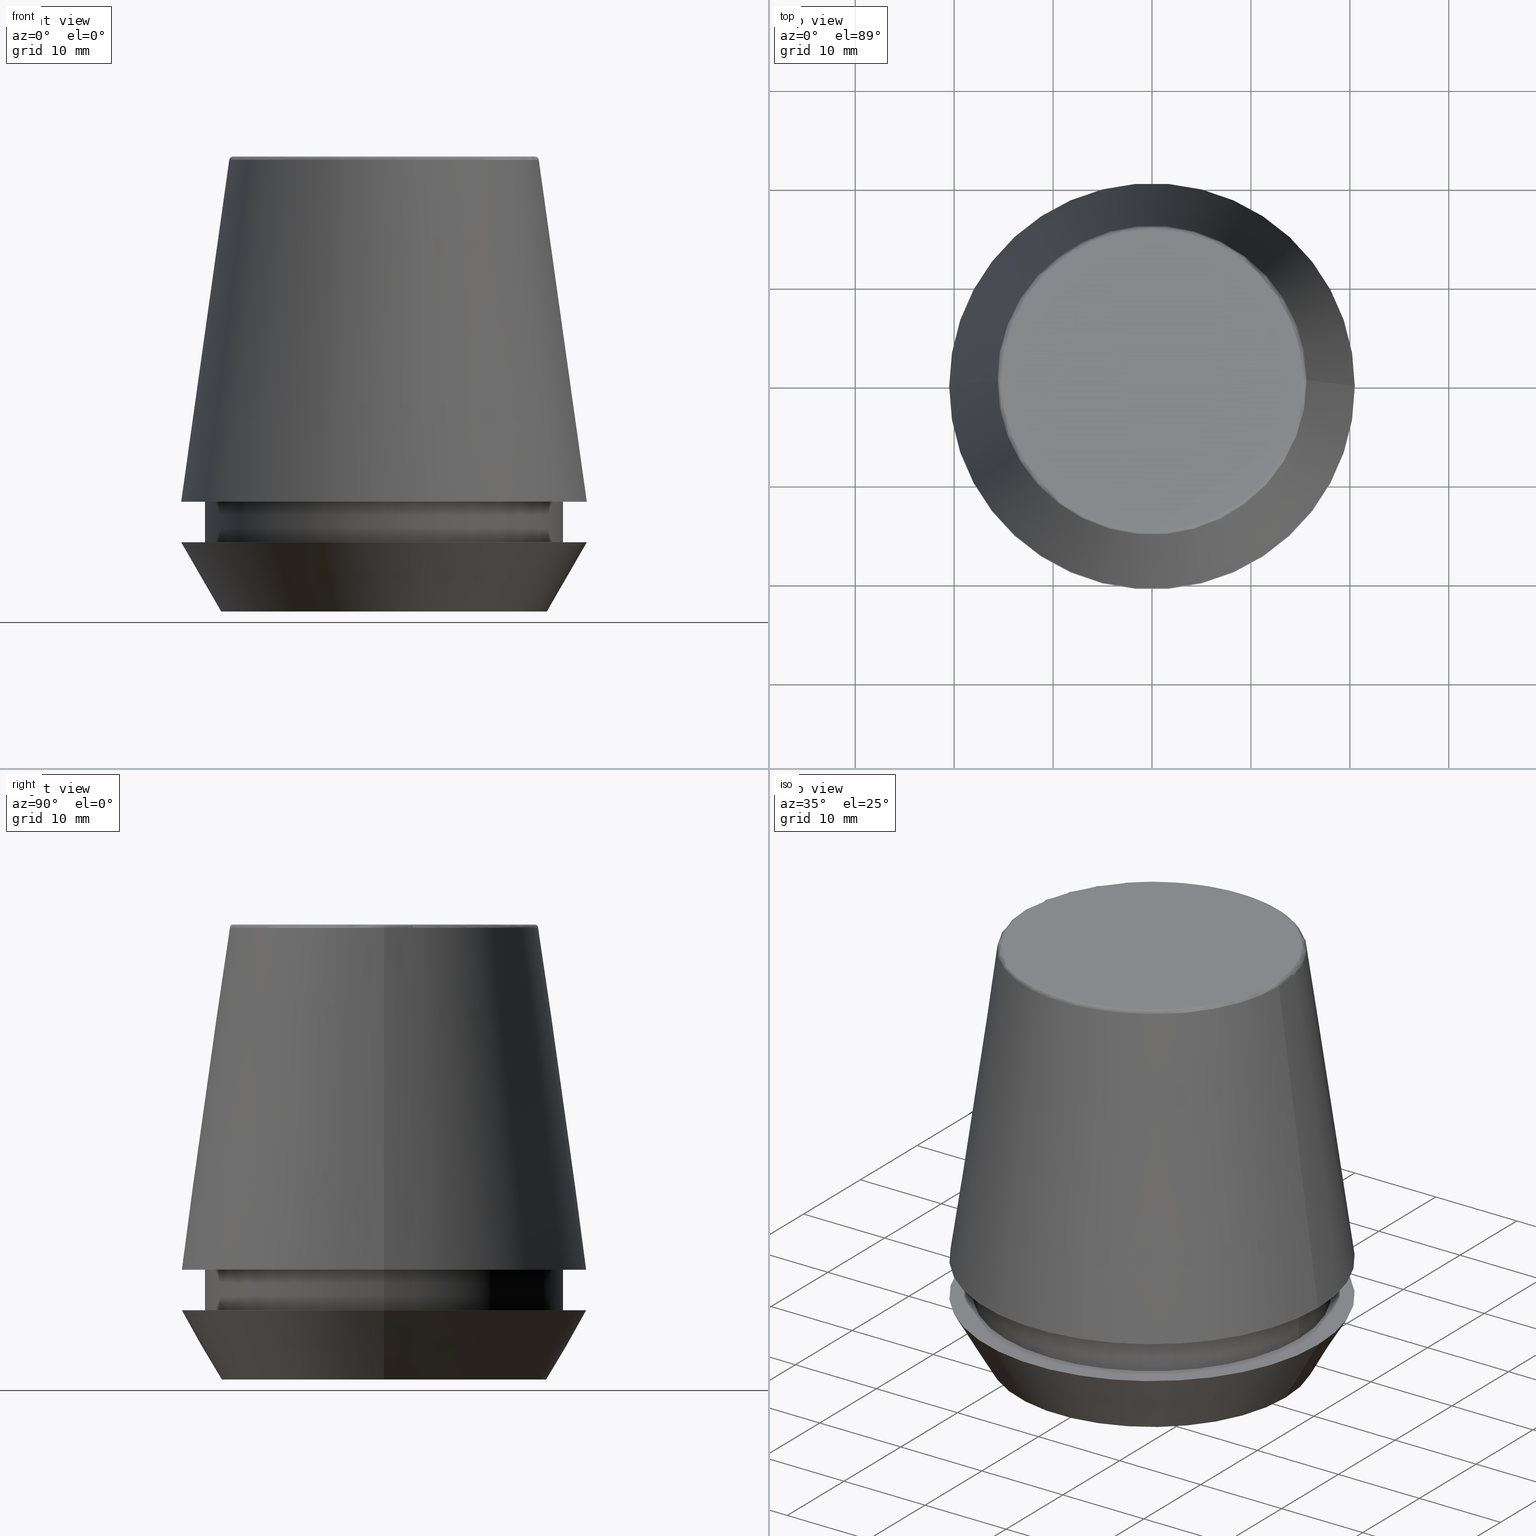
[diagram: canonical four-view strip — front | top / right | iso, engineering-drawing reading convention]
A machine part, canonical four-view strip (front | top / right | iso — engineering-drawing reading convention). The complete STEP part file that produces these views, byte-faithful:
ISO-10303-21;
HEADER;
FILE_DESCRIPTION (( 'STEP AP203' ),
    '1' );
FILE_NAME ('TAP COLLET ER 40G 18.0 X 14.5.STEP',
    '2019-04-10T04:15:22',
    ( '' ),
    ( '' ),
    'SwSTEP 2.0',
    'SolidWorks 2014',
    '' );
FILE_SCHEMA (( 'CONFIG_CONTROL_DESIGN' ));
ENDSEC;

DATA;
#1 = VECTOR ( 'NONE', #119, 1000.000000000000000 ) ;
#2 = CIRCLE ( 'NONE', #41, 16.45854811567268100 ) ;
#3 = APPROVAL_STATUS ( 'not_yet_approved' ) ;
#4 = AXIS2_PLACEMENT_3D ( 'NONE', #329, #192, #379 ) ;
#5 = CARTESIAN_POINT ( 'NONE',  ( 18.10000000000000500, 0.0000000000000000000, 11.09999999999999800 ) ) ;
#6 = ORIENTED_EDGE ( 'NONE', *, *, #377, .F. ) ;
#7 = FACE_OUTER_BOUND ( 'NONE', #174, .T. ) ;
#8 = VECTOR ( 'NONE', #197, 1000.000000000000000 ) ;
#9 = SHAPE_DEFINITION_REPRESENTATION ( #53, #152 ) ;
#10 = DIRECTION ( 'NONE',  ( -0.0000000000000000000, -0.0000000000000000000, 1.000000000000000000 ) ) ;
#11 = COORDINATED_UNIVERSAL_TIME_OFFSET ( 5, 30, .AHEAD. ) ;
#12 = AXIS2_PLACEMENT_3D ( 'NONE', #295, #73, #300 ) ;
#13 = DIRECTION ( 'NONE',  ( 1.000000000000000000, 0.0000000000000000000, 0.0000000000000000000 ) ) ;
#14 = DATE_TIME_ROLE ( 'creation_date' ) ;
#15 = SECURITY_CLASSIFICATION ( '', '', #334 ) ;
#16 = CIRCLE ( 'NONE', #120, 15.64384277279740400 ) ;
#17 = FACE_OUTER_BOUND ( 'NONE', #155, .T. ) ;
#18 = DIRECTION ( 'NONE',  ( 0.0000000000000000000, 0.0000000000000000000, 1.000000000000000000 ) ) ;
#19 = PERSON_AND_ORGANIZATION ( #158, #339 ) ;
#20 = AXIS2_PLACEMENT_3D ( 'NONE', #36, #51, #89 ) ;
#21 = DIRECTION ( 'NONE',  ( 1.000000000000000000, 0.0000000000000000000, 0.0000000000000000000 ) ) ;
#22 = ORIENTED_EDGE ( 'NONE', *, *, #167, .F. ) ;
#23 = CARTESIAN_POINT ( 'NONE',  ( 0.0000000000000000000, 0.0000000000000000000, 0.0000000000000000000 ) ) ;
#24 = DIRECTION ( 'NONE',  ( -0.0000000000000000000, -0.0000000000000000000, 1.000000000000000000 ) ) ;
#25 = CC_DESIGN_DATE_AND_TIME_ASSIGNMENT ( #277, #14, ( #355 ) ) ;
#26 = CARTESIAN_POINT ( 'NONE',  ( 0.0000000000000000000, 0.0000000000000000000, 7.000000000000006200 ) ) ;
#27 = DIRECTION ( 'NONE',  ( 1.000000000000000000, 0.0000000000000000000, 0.0000000000000000000 ) ) ;
#28 = DIRECTION ( 'NONE',  ( 1.000000000000000000, 0.0000000000000000000, 0.0000000000000000000 ) ) ;
#29 = ORIENTED_EDGE ( 'NONE', *, *, #306, .F. ) ;
#30 = ADVANCED_FACE ( 'NONE', ( #347 ), #113, .T. ) ;
#31 = DATE_AND_TIME ( #67, #271 ) ;
#32 = CARTESIAN_POINT ( 'NONE',  ( 0.0000000000000000000, 0.0000000000000000000, 11.09999999999999800 ) ) ;
#33 = TOROIDAL_SURFACE ( 'NONE', #181, 15.24773554530077600, 0.3999999999999991900 ) ;
#34 = ORIENTED_EDGE ( 'NONE', *, *, #167, .T. ) ;
#35 = PERSON_AND_ORGANIZATION ( #158, #339 ) ;
#36 = CARTESIAN_POINT ( 'NONE',  ( 0.0000000000000000000, 20.50032537154048700, 11.09999999999999800 ) ) ;
#37 = ORIENTED_EDGE ( 'NONE', *, *, #306, .T. ) ;
#38 = VERTEX_POINT ( 'NONE', #108 ) ;
#39 = AXIS2_PLACEMENT_3D ( 'NONE', #270, #362, #316 ) ;
#40 = DATE_AND_TIME ( #71, #387 ) ;
#41 = AXIS2_PLACEMENT_3D ( 'NONE', #248, #136, #195 ) ;
#42 = DIRECTION ( 'NONE',  ( 1.224646799147353200E-016, 1.000000000000000000, 0.0000000000000000000 ) ) ;
#43 = CC_DESIGN_APPROVAL ( #361, ( #355 ) ) ;
#44 = APPROVAL_PERSON_ORGANIZATION ( #224, #58, #244 ) ;
#45 = VECTOR ( 'NONE', #233, 1000.000000000000000 ) ;
#46 = PLANE ( 'NONE',  #20 ) ;
#47 = ORIENTED_EDGE ( 'NONE', *, *, #377, .T. ) ;
#48 = ORIENTED_EDGE ( 'NONE', *, *, #78, .F. ) ;
#49 = CARTESIAN_POINT ( 'NONE',  ( 0.0000000000000000000, 0.0000000000000000000, 46.00000000000000000 ) ) ;
#50 = VERTEX_POINT ( 'NONE', #314 ) ;
#51 = DIRECTION ( 'NONE',  ( 0.0000000000000000000, -0.0000000000000000000, 1.000000000000000000 ) ) ;
#52 = AXIS2_PLACEMENT_3D ( 'NONE', #182, #214, #13 ) ;
#54 = EDGE_LOOP ( 'NONE', ( #6, #320, #179, #102 ) ) ;
#53 = PRODUCT_DEFINITION_SHAPE ( 'NONE', 'NONE',  #355 ) ;
#55 = DIRECTION ( 'NONE',  ( 1.000000000000000000, 0.0000000000000000000, 0.0000000000000000000 ) ) ;
#56 = VERTEX_POINT ( 'NONE', #333 ) ;
#57 = ORIENTED_EDGE ( 'NONE', *, *, #156, .F. ) ;
#58 = APPROVAL ( #209, 'UNSPECIFIED' ) ;
#59 = ORIENTED_EDGE ( 'NONE', *, *, #190, .F. ) ;
#60 = COORDINATED_UNIVERSAL_TIME_OFFSET ( 5, 30, .AHEAD. ) ;
#61 = CARTESIAN_POINT ( 'NONE',  ( 0.0000000000000000000, 0.0000000000000000000, 11.09999999999999800 ) ) ;
#62 = EDGE_LOOP ( 'NONE', ( #48, #68, #66, #238 ) ) ;
#63 = ORIENTED_EDGE ( 'NONE', *, *, #135, .T. ) ;
#64 = CARTESIAN_POINT ( 'NONE',  ( -16.45854811567268100, 2.263058382549599700E-015, 0.0000000000000000000 ) ) ;
#65 = AXIS2_PLACEMENT_3D ( 'NONE', #112, #122, #176 ) ;
#66 = ORIENTED_EDGE ( 'NONE', *, *, #315, .T. ) ;
#67 = CALENDAR_DATE ( 2019, 10, 4 ) ;
#68 = ORIENTED_EDGE ( 'NONE', *, *, #190, .T. ) ;
#69 = EDGE_LOOP ( 'NONE', ( #116, #59 ) ) ;
#70 = AXIS2_PLACEMENT_3D ( 'NONE', #375, #302, #21 ) ;
#71 = CALENDAR_DATE ( 2019, 10, 4 ) ;
#72 = ORIENTED_EDGE ( 'NONE', *, *, #125, .T. ) ;
#73 = DIRECTION ( 'NONE',  ( 0.0000000000000000000, 0.0000000000000000000, -1.000000000000000000 ) ) ;
#74 = VERTEX_POINT ( 'NONE', #310 ) ;
#75 = EDGE_LOOP ( 'NONE', ( #249, #364, #37, #91 ) ) ;
#76 = APPROVAL_PERSON_ORGANIZATION ( #357, #199, #239 ) ;
#77 = ORIENTED_EDGE ( 'NONE', *, *, #164, .F. ) ;
#78 = EDGE_CURVE ( 'NONE', #336, #38, #194, .T. ) ;
#79 = EDGE_LOOP ( 'NONE', ( #296, #34, #72, #57 ) ) ;
#80 = ORIENTED_EDGE ( 'NONE', *, *, #175, .F. ) ;
#81 = COORDINATED_UNIVERSAL_TIME_OFFSET ( 5, 30, .AHEAD. ) ;
#82 = CARTESIAN_POINT ( 'NONE',  ( -18.10000000000000500, 2.216610706456710000E-015, 46.00000000000000000 ) ) ;
#83 = ORIENTED_EDGE ( 'NONE', *, *, #253, .T. ) ;
#84 = APPLICATION_CONTEXT ( 'configuration controlled 3d designs of mechanical parts and assemblies' ) ;
#85 = ORIENTED_EDGE ( 'NONE', *, *, #164, .T. ) ;
#86 = AXIS2_PLACEMENT_3D ( 'NONE', #196, #290, #101 ) ;
#87 = DIRECTION ( 'NONE',  ( -0.0000000000000000000, -0.0000000000000000000, 1.000000000000000000 ) ) ;
#88 = ORIENTED_EDGE ( 'NONE', *, *, #221, .F. ) ;
#89 = DIRECTION ( 'NONE',  ( 1.000000000000000000, 0.0000000000000000000, 0.0000000000000000000 ) ) ;
#90 = EDGE_LOOP ( 'NONE', ( #83, #63 ) ) ;
#91 = ORIENTED_EDGE ( 'NONE', *, *, #145, .T. ) ;
#92 = ORIENTED_EDGE ( 'NONE', *, *, #175, .T. ) ;
#93 = CARTESIAN_POINT ( 'NONE',  ( 0.0000000000000000000, 0.0000000000000000000, 0.0000000000000000000 ) ) ;
#94 = VERTEX_POINT ( 'NONE', #173 ) ;
#95 = DIRECTION ( 'NONE',  ( 1.000000000000000000, 0.0000000000000000000, 0.0000000000000000000 ) ) ;
#96 = AXIS2_PLACEMENT_3D ( 'NONE', #359, #230, #27 ) ;
#97 = EDGE_LOOP ( 'NONE', ( #85, #110 ) ) ;
#98 = EDGE_CURVE ( 'NONE', #160, #269, #16, .T. ) ;
#99 = EDGE_LOOP ( 'NONE', ( #107, #213, #88, #326 ) ) ;
#100 = FACE_OUTER_BOUND ( 'NONE', #90, .T. ) ;
#101 = DIRECTION ( 'NONE',  ( 1.000000000000000000, 0.0000000000000000000, 0.0000000000000000000 ) ) ;
#102 = ORIENTED_EDGE ( 'NONE', *, *, #135, .F. ) ;
#103 = LINE ( 'NONE', #373, #292 ) ;
#104 = CARTESIAN_POINT ( 'NONE',  ( -15.64384277279740400, 0.0000000000000000000, 45.65566924038402900 ) ) ;
#105 = DIRECTION ( 'NONE',  ( 1.000000000000000000, 0.0000000000000000000, 0.0000000000000000000 ) ) ;
#106 = COORDINATED_UNIVERSAL_TIME_OFFSET ( 5, 30, .AHEAD. ) ;
#107 = ORIENTED_EDGE ( 'NONE', *, *, #346, .T. ) ;
#108 = CARTESIAN_POINT ( 'NONE',  ( -20.50000000000000000, 2.510525938252074100E-015, 7.000000000000006200 ) ) ;
#109 = LINE ( 'NONE', #291, #45 ) ;
#110 = ORIENTED_EDGE ( 'NONE', *, *, #147, .T. ) ;
#111 = AXIS2_PLACEMENT_3D ( 'NONE', #169, #10, #28 ) ;
#112 = CARTESIAN_POINT ( 'NONE',  ( 0.0000000000000000000, 20.50000000000000000, 7.000000000000002700 ) ) ;
#113 = TOROIDAL_SURFACE ( 'NONE', #111, 15.24773554530077600, 0.3999999999999991900 ) ;
#114 = VERTEX_POINT ( 'NONE', #265 ) ;
#115 = DIRECTION ( 'NONE',  ( 1.000000000000000000, 0.0000000000000000000, 0.0000000000000000000 ) ) ;
#116 = ORIENTED_EDGE ( 'NONE', *, *, #322, .F. ) ;
#117 = PERSON_AND_ORGANIZATION_ROLE ( 'design_supplier' ) ;
#118 = CC_DESIGN_SECURITY_CLASSIFICATION ( #15, ( #163 ) ) ;
#119 = DIRECTION ( 'NONE',  ( -0.4999999999999941700, 6.123233995736694500E-017, 0.8660254037844420400 ) ) ;
#120 = AXIS2_PLACEMENT_3D ( 'NONE', #330, #382, #105 ) ;
#121 = CIRCLE ( 'NONE', #86, 20.50032537154048700 ) ;
#122 = DIRECTION ( 'NONE',  ( 0.0000000000000000000, 0.0000000000000000000, -1.000000000000000000 ) ) ;
#123 = DIRECTION ( 'NONE',  ( 1.000000000000000000, 0.0000000000000000000, 0.0000000000000000000 ) ) ;
#124 = DIRECTION ( 'NONE',  ( 0.0000000000000000000, 0.0000000000000000000, -1.000000000000000000 ) ) ;
#125 = EDGE_CURVE ( 'NONE', #319, #243, #109, .T. ) ;
#126 = PLANE ( 'NONE',  #65 ) ;
#127 = CIRCLE ( 'NONE', #70, 18.10000000000000500 ) ;
#128 = DIRECTION ( 'NONE',  ( -0.0000000000000000000, -0.0000000000000000000, 1.000000000000000000 ) ) ;
#129 = CALENDAR_DATE ( 2019, 10, 4 ) ;
#130 = DIRECTION ( 'NONE',  ( -0.0000000000000000000, -0.0000000000000000000, 1.000000000000000000 ) ) ;
#131 =( LENGTH_UNIT ( ) NAMED_UNIT ( * ) SI_UNIT ( .MILLI., .METRE. ) );
#132 = FACE_OUTER_BOUND ( 'NONE', #69, .T. ) ;
#133 = EDGE_LOOP ( 'NONE', ( #282, #22 ) ) ;
#134 = DIRECTION ( 'NONE',  ( 0.0000000000000000000, -0.0000000000000000000, 1.000000000000000000 ) ) ;
#135 = EDGE_CURVE ( 'NONE', #56, #255, #341, .T. ) ;
#136 = DIRECTION ( 'NONE',  ( -0.0000000000000000000, -0.0000000000000000000, 1.000000000000000000 ) ) ;
#137 = ORIENTED_EDGE ( 'NONE', *, *, #253, .F. ) ;
#138 = CC_DESIGN_PERSON_AND_ORGANIZATION_ASSIGNMENT ( #385, #117, ( #163 ) ) ;
#139 = DIRECTION ( 'NONE',  ( -0.0000000000000000000, -0.0000000000000000000, 1.000000000000000000 ) ) ;
#140 = DIRECTION ( 'NONE',  ( 1.000000000000000000, 0.0000000000000000000, 0.0000000000000000000 ) ) ;
#141 = DIRECTION ( 'NONE',  ( -0.0000000000000000000, -0.0000000000000000000, 1.000000000000000000 ) ) ;
#142 = DIRECTION ( 'NONE',  ( 1.000000000000000000, 0.0000000000000000000, 0.0000000000000000000 ) ) ;
#143 = APPROVAL_DATE_TIME ( #251, #199 ) ;
#144 = CARTESIAN_POINT ( 'NONE',  ( 16.45854811567268100, 0.0000000000000000000, 0.0000000000000000000 ) ) ;
#145 = EDGE_CURVE ( 'NONE', #74, #94, #121, .T. ) ;
#146 = CARTESIAN_POINT ( 'NONE',  ( 0.0000000000000000000, 0.0000000000000000000, 46.00000000000000000 ) ) ;
#147 = EDGE_CURVE ( 'NONE', #38, #222, #157, .T. ) ;
#148 = CARTESIAN_POINT ( 'NONE',  ( 15.24773554530077600, 0.0000000000000000000, 46.00000000000000000 ) ) ;
#149 = PRODUCT_RELATED_PRODUCT_CATEGORY ( 'detail', '', ( #154 ) ) ;
#150 = APPROVAL_DATE_TIME ( #40, #58 ) ;
#151 = PLANE ( 'NONE',  #12 ) ;
#152 = ADVANCED_BREP_SHAPE_REPRESENTATION ( 'TAP COLLET ER 40G 18.0 X 14.5', ( #349, #345 ), #368 ) ;
#153 = PERSON_AND_ORGANIZATION ( #158, #339 ) ;
#154 = PRODUCT ( 'TAP COLLET ER 40G 18.0 X 14.5', 'TAP COLLET ER 40G 18.0 X 14.5', '', ( #187 ) ) ;
#155 = EDGE_LOOP ( 'NONE', ( #337, #200, #92, #29 ) ) ;
#156 = EDGE_CURVE ( 'NONE', #172, #243, #186, .T. ) ;
#157 = CIRCLE ( 'NONE', #327, 20.50000000000000000 ) ;
#158 = PERSON ( 'UNSPECIFIED', 'UNSPECIFIED', 'UNSPECIFIED', ('UNSPECIFIED'), ('UNSPECIFIED'), ('UNSPECIFIED') ) ;
#159 = CC_DESIGN_PERSON_AND_ORGANIZATION_ASSIGNMENT ( #35, #275, ( #163 ) ) ;
#160 = VERTEX_POINT ( 'NONE', #104 ) ;
#161 = CARTESIAN_POINT ( 'NONE',  ( 0.0000000000000000000, 0.0000000000000000000, 0.0000000000000000000 ) ) ;
#162 =( NAMED_UNIT ( * ) SI_UNIT ( $, .STERADIAN. ) SOLID_ANGLE_UNIT ( ) );
#163 = PRODUCT_DEFINITION_FORMATION_WITH_SPECIFIED_SOURCE ( 'ANY', '', #154, .NOT_KNOWN. ) ;
#164 = EDGE_CURVE ( 'NONE', #222, #38, #324, .T. ) ;
#165 = CARTESIAN_POINT ( 'NONE',  ( 0.0000000000000000000, 0.0000000000000000000, 0.0000000000000000000 ) ) ;
#166 = CONICAL_SURFACE ( 'NONE', #321, 20.50032537154048700, 0.1396263401595396200 ) ;
#167 = EDGE_CURVE ( 'NONE', #114, #319, #170, .T. ) ;
#168 = CARTESIAN_POINT ( 'NONE',  ( -18.10000000000000500, 2.216610706456710000E-015, 11.09999999999999800 ) ) ;
#169 = CARTESIAN_POINT ( 'NONE',  ( 0.0000000000000000000, 0.0000000000000000000, 45.60000000000000100 ) ) ;
#170 = CIRCLE ( 'NONE', #288, 18.10000000000000100 ) ;
#171 = APPROVAL_ROLE ( '' ) ;
#172 = VERTEX_POINT ( 'NONE', #168 ) ;
#173 = CARTESIAN_POINT ( 'NONE',  ( 20.50032537154048700, 2.510565784773633700E-015, 11.09999999999999800 ) ) ;
#174 = EDGE_LOOP ( 'NONE', ( #204, #47, #137, #242 ) ) ;
#175 = EDGE_CURVE ( 'NONE', #94, #74, #340, .T. ) ;
#176 = DIRECTION ( 'NONE',  ( -1.000000000000000000, 0.0000000000000000000, -0.0000000000000000000 ) ) ;
#177 = DIRECTION ( 'NONE',  ( -1.000000000000000000, 0.0000000000000000000, 0.0000000000000000000 ) ) ;
#178 = FACE_BOUND ( 'NONE', #366, .T. ) ;
#179 = ORIENTED_EDGE ( 'NONE', *, *, #293, .T. ) ;
#180 = CC_DESIGN_APPROVAL ( #58, ( #163 ) ) ;
#181 = AXIS2_PLACEMENT_3D ( 'NONE', #354, #139, #55 ) ;
#182 = CARTESIAN_POINT ( 'NONE',  ( 0.0000000000000000000, 0.0000000000000000000, 45.65566924038402900 ) ) ;
#183 = AXIS2_PLACEMENT_3D ( 'NONE', #371, #279, #124 ) ;
#184 = CARTESIAN_POINT ( 'NONE',  ( 15.64384277279740400, 2.213191991290356800E-015, 45.65566924038402900 ) ) ;
#185 = CC_DESIGN_PERSON_AND_ORGANIZATION_ASSIGNMENT ( #309, #312, ( #355 ) ) ;
#186 = CIRCLE ( 'NONE', #376, 18.10000000000000500 ) ;
#187 = MECHANICAL_CONTEXT ( 'NONE', #348, 'mechanical' ) ;
#188 = DIRECTION ( 'NONE',  ( 1.000000000000000000, 0.0000000000000000000, 0.0000000000000000000 ) ) ;
#189 = DESIGN_CONTEXT ( 'detailed design', #84, 'design' ) ;
#190 = EDGE_CURVE ( 'NONE', #336, #50, #317, .T. ) ;
#191 = DATE_AND_TIME ( #129, #201 ) ;
#192 = DIRECTION ( 'NONE',  ( -0.0000000000000000000, -0.0000000000000000000, 1.000000000000000000 ) ) ;
#193 = CARTESIAN_POINT ( 'NONE',  ( 0.0000000000000000000, 0.0000000000000000000, 46.00000000000000000 ) ) ;
#194 = LINE ( 'NONE', #386, #1 ) ;
#195 = DIRECTION ( 'NONE',  ( 1.000000000000000000, 0.0000000000000000000, 0.0000000000000000000 ) ) ;
#196 = CARTESIAN_POINT ( 'NONE',  ( 0.0000000000000000000, 0.0000000000000000000, 11.09999999999999800 ) ) ;
#197 = DIRECTION ( 'NONE',  ( 0.4999999999999941700, 0.0000000000000000000, 0.8660254037844420400 ) ) ;
#198 = ADVANCED_FACE ( 'NONE', ( #7 ), #33, .T. ) ;
#199 = APPROVAL ( #3, 'UNSPECIFIED' ) ;
#200 = ORIENTED_EDGE ( 'NONE', *, *, #212, .T. ) ;
#201 = LOCAL_TIME ( 9, 45, 22.00000000000000000, #106 ) ;
#202 = ADVANCED_FACE ( 'NONE', ( #358 ), #216, .T. ) ;
#203 = DATE_TIME_ROLE ( 'classification_date' ) ;
#204 = ORIENTED_EDGE ( 'NONE', *, *, #369, .T. ) ;
#205 = CIRCLE ( 'NONE', #384, 0.3999999999999975800 ) ;
#206 = APPROVAL_STATUS ( 'not_yet_approved' ) ;
#207 = CC_DESIGN_APPROVAL ( #199, ( #15 ) ) ;
#208 = CYLINDRICAL_SURFACE ( 'NONE', #335, 18.10000000000000500 ) ;
#209 = APPROVAL_STATUS ( 'not_yet_approved' ) ;
#210 = EDGE_LOOP ( 'NONE', ( #343, #80 ) ) ;
#211 = LINE ( 'NONE', #304, #241 ) ;
#212 = EDGE_CURVE ( 'NONE', #269, #94, #211, .T. ) ;
#213 = ORIENTED_EDGE ( 'NONE', *, *, #297, .T. ) ;
#214 = DIRECTION ( 'NONE',  ( -0.0000000000000000000, -0.0000000000000000000, 1.000000000000000000 ) ) ;
#215 = FACE_BOUND ( 'NONE', #133, .T. ) ;
#216 = CONICAL_SURFACE ( 'NONE', #268, 16.45854811567268100, 0.5235987755982921500 ) ;
#217 = CARTESIAN_POINT ( 'NONE',  ( -15.24773554530077600, 1.867309052979791600E-015, 45.60000000000000100 ) ) ;
#218 = UNCERTAINTY_MEASURE_WITH_UNIT (LENGTH_MEASURE( 1.000000000000000100E-005 ), #131, 'distance_accuracy_value', 'NONE');
#219 = DIRECTION ( 'NONE',  ( -0.1391731009600587200, 0.0000000000000000000, -0.9902680687415712500 ) ) ;
#220 = FACE_OUTER_BOUND ( 'NONE', #363, .T. ) ;
#221 = EDGE_CURVE ( 'NONE', #243, #172, #127, .T. ) ;
#222 = VERTEX_POINT ( 'NONE', #263 ) ;
#223 = PLANE ( 'NONE',  #260 ) ;
#224 = PERSON_AND_ORGANIZATION ( #158, #339 ) ;
#225 = DIRECTION ( 'NONE',  ( 1.000000000000000000, 0.0000000000000000000, 0.0000000000000000000 ) ) ;
#226 = CARTESIAN_POINT ( 'NONE',  ( 0.0000000000000000000, 0.0000000000000000000, 11.09999999999999800 ) ) ;
#227 = ADVANCED_FACE ( 'NONE', ( #132 ), #223, .F. ) ;
#228 = DIRECTION ( 'NONE',  ( -0.0000000000000000000, -0.0000000000000000000, 1.000000000000000000 ) ) ;
#229 = DIRECTION ( 'NONE',  ( 0.0000000000000000000, 0.0000000000000000000, -1.000000000000000000 ) ) ;
#230 = DIRECTION ( 'NONE',  ( -0.0000000000000000000, -0.0000000000000000000, 1.000000000000000000 ) ) ;
#231 = ADVANCED_FACE ( 'NONE', ( #332 ), #283, .T. ) ;
#232 = LINE ( 'NONE', #82, #344 ) ;
#233 = DIRECTION ( 'NONE',  ( -0.0000000000000000000, -0.0000000000000000000, 1.000000000000000000 ) ) ;
#234 = FACE_OUTER_BOUND ( 'NONE', #97, .T. ) ;
#235 = ORIENTED_EDGE ( 'NONE', *, *, #322, .T. ) ;
#236 = ADVANCED_FACE ( 'NONE', ( #220 ), #252, .T. ) ;
#237 = AXIS2_PLACEMENT_3D ( 'NONE', #146, #130, #280 ) ;
#238 = ORIENTED_EDGE ( 'NONE', *, *, #147, .F. ) ;
#239 = APPROVAL_ROLE ( '' ) ;
#240 = FACE_OUTER_BOUND ( 'NONE', #99, .T. ) ;
#241 = VECTOR ( 'NONE', #305, 1000.000000000000000 ) ;
#242 = ORIENTED_EDGE ( 'NONE', *, *, #293, .F. ) ;
#243 = VERTEX_POINT ( 'NONE', #5 ) ;
#244 = APPROVAL_ROLE ( '' ) ;
#245 = CIRCLE ( 'NONE', #237, 15.24773554530077600 ) ;
#246 = CIRCLE ( 'NONE', #183, 0.3999999999999975800 ) ;
#247 = AXIS2_PLACEMENT_3D ( 'NONE', #257, #141, #225 ) ;
#248 = CARTESIAN_POINT ( 'NONE',  ( 0.0000000000000000000, 0.0000000000000000000, 0.0000000000000000000 ) ) ;
#249 = ORIENTED_EDGE ( 'NONE', *, *, #212, .F. ) ;
#250 = APPLICATION_PROTOCOL_DEFINITION ( 'international standard', 'config_control_design', 1994, #84 ) ;
#251 = DATE_AND_TIME ( #342, #374 ) ;
#252 = CONICAL_SURFACE ( 'NONE', #247, 16.45854811567268100, 0.5235987755982921500 ) ;
#253 = EDGE_CURVE ( 'NONE', #255, #56, #245, .T. ) ;
#254 = ORIENTED_EDGE ( 'NONE', *, *, #78, .T. ) ;
#255 = VERTEX_POINT ( 'NONE', #148 ) ;
#256 = CARTESIAN_POINT ( 'NONE',  ( 0.0000000000000000000, 0.0000000000000000000, 11.09999999999999800 ) ) ;
#257 = CARTESIAN_POINT ( 'NONE',  ( 0.0000000000000000000, 0.0000000000000000000, 0.0000000000000000000 ) ) ;
#258 = ORIENTED_EDGE ( 'NONE', *, *, #221, .T. ) ;
#259 = DIRECTION ( 'NONE',  ( -0.0000000000000000000, -0.0000000000000000000, 1.000000000000000000 ) ) ;
#260 = AXIS2_PLACEMENT_3D ( 'NONE', #165, #134, #188 ) ;
#261 = LOCAL_TIME ( 9, 45, 22.00000000000000000, #81 ) ;
#262 = APPROVAL_PERSON_ORGANIZATION ( #360, #361, #171 ) ;
#263 = CARTESIAN_POINT ( 'NONE',  ( 20.50000000000000000, 0.0000000000000000000, 7.000000000000006200 ) ) ;
#264 = DIRECTION ( 'NONE',  ( -0.0000000000000000000, -0.0000000000000000000, 1.000000000000000000 ) ) ;
#265 = CARTESIAN_POINT ( 'NONE',  ( -18.10000000000000100, 2.216610706456709600E-015, 6.999999999999999100 ) ) ;
#266 = ADVANCED_FACE ( 'NONE', ( #17 ), #166, .T. ) ;
#267 = COORDINATED_UNIVERSAL_TIME_OFFSET ( 5, 30, .AHEAD. ) ;
#268 = AXIS2_PLACEMENT_3D ( 'NONE', #23, #259, #311 ) ;
#269 = VERTEX_POINT ( 'NONE', #184 ) ;
#270 = CARTESIAN_POINT ( 'NONE',  ( 0.0000000000000000000, 0.0000000000000000000, 6.999999999999999100 ) ) ;
#271 = LOCAL_TIME ( 9, 45, 22.00000000000000000, #60 ) ;
#272 = DIRECTION ( 'NONE',  ( 0.0000000000000000000, 0.0000000000000000000, -1.000000000000000000 ) ) ;
#273 = ORIENTED_EDGE ( 'NONE', *, *, #156, .T. ) ;
#274 = AXIS2_PLACEMENT_3D ( 'NONE', #49, #87, #281 ) ;
#275 = PERSON_AND_ORGANIZATION_ROLE ( 'creator' ) ;
#276 = DIRECTION ( 'NONE',  ( -1.000000000000000000, 0.0000000000000000000, 0.0000000000000000000 ) ) ;
#277 = DATE_AND_TIME ( #351, #261 ) ;
#278 = AXIS2_PLACEMENT_3D ( 'NONE', #226, #287, #378 ) ;
#279 = DIRECTION ( 'NONE',  ( 0.0000000000000000000, -1.000000000000000000, 0.0000000000000000000 ) ) ;
#280 = DIRECTION ( 'NONE',  ( 1.000000000000000000, 0.0000000000000000000, 0.0000000000000000000 ) ) ;
#281 = DIRECTION ( 'NONE',  ( 1.000000000000000000, 0.0000000000000000000, 0.0000000000000000000 ) ) ;
#282 = ORIENTED_EDGE ( 'NONE', *, *, #346, .F. ) ;
#283 = CYLINDRICAL_SURFACE ( 'NONE', #274, 18.10000000000000500 ) ;
#284 = AXIS2_PLACEMENT_3D ( 'NONE', #93, #24, #286 ) ;
#285 = CC_DESIGN_DATE_AND_TIME_ASSIGNMENT ( #191, #203, ( #15 ) ) ;
#286 = DIRECTION ( 'NONE',  ( 1.000000000000000000, 0.0000000000000000000, 0.0000000000000000000 ) ) ;
#287 = DIRECTION ( 'NONE',  ( -0.0000000000000000000, -0.0000000000000000000, 1.000000000000000000 ) ) ;
#288 = AXIS2_PLACEMENT_3D ( 'NONE', #328, #228, #95 ) ;
#289 = DIRECTION ( 'NONE',  ( -0.0000000000000000000, -0.0000000000000000000, 1.000000000000000000 ) ) ;
#290 = DIRECTION ( 'NONE',  ( -0.0000000000000000000, -0.0000000000000000000, 1.000000000000000000 ) ) ;
#291 = CARTESIAN_POINT ( 'NONE',  ( 18.10000000000000500, 0.0000000000000000000, 46.00000000000000000 ) ) ;
#292 = VECTOR ( 'NONE', #219, 1000.000000000000000 ) ;
#293 = EDGE_CURVE ( 'NONE', #269, #255, #246, .T. ) ;
#294 = CLOSED_SHELL ( 'NONE', ( #198, #266, #381, #236, #227, #202, #380, #231, #307, #383, #30, #299 ) ) ;
#295 = CARTESIAN_POINT ( 'NONE',  ( 0.0000000000000000000, 15.24773554530077600, 46.00000000000000000 ) ) ;
#296 = ORIENTED_EDGE ( 'NONE', *, *, #297, .F. ) ;
#297 = EDGE_CURVE ( 'NONE', #114, #172, #232, .T. ) ;
#298 = CIRCLE ( 'NONE', #52, 15.64384277279740400 ) ;
#299 = ADVANCED_FACE ( 'NONE', ( #100 ), #151, .F. ) ;
#300 = DIRECTION ( 'NONE',  ( -1.000000000000000000, 0.0000000000000000000, -0.0000000000000000000 ) ) ;
#301 =( NAMED_UNIT ( * ) PLANE_ANGLE_UNIT ( ) SI_UNIT ( $, .RADIAN. ) );
#302 = DIRECTION ( 'NONE',  ( -0.0000000000000000000, -0.0000000000000000000, 1.000000000000000000 ) ) ;
#303 = APPROVAL_DATE_TIME ( #31, #361 ) ;
#304 = CARTESIAN_POINT ( 'NONE',  ( 20.50032537154048700, 2.510565784773633700E-015, 11.09999999999999800 ) ) ;
#305 = DIRECTION ( 'NONE',  ( 0.1391731009600587200, 1.704378926181473400E-017, -0.9902680687415712500 ) ) ;
#306 = EDGE_CURVE ( 'NONE', #160, #74, #103, .T. ) ;
#307 = ADVANCED_FACE ( 'NONE', ( #338, #178 ), #46, .F. ) ;
#308 = DIRECTION ( 'NONE',  ( -0.0000000000000000000, -0.0000000000000000000, 1.000000000000000000 ) ) ;
#309 = PERSON_AND_ORGANIZATION ( #158, #339 ) ;
#310 = CARTESIAN_POINT ( 'NONE',  ( -20.50032537154048700, 0.0000000000000000000, 11.09999999999999800 ) ) ;
#311 = DIRECTION ( 'NONE',  ( 1.000000000000000000, 0.0000000000000000000, 0.0000000000000000000 ) ) ;
#312 = PERSON_AND_ORGANIZATION_ROLE ( 'creator' ) ;
#313 = FACE_OUTER_BOUND ( 'NONE', #75, .T. ) ;
#314 = CARTESIAN_POINT ( 'NONE',  ( 16.45854811567268100, 0.0000000000000000000, 0.0000000000000000000 ) ) ;
#315 = EDGE_CURVE ( 'NONE', #50, #222, #353, .T. ) ;
#316 = DIRECTION ( 'NONE',  ( 1.000000000000000000, 0.0000000000000000000, 0.0000000000000000000 ) ) ;
#317 = CIRCLE ( 'NONE', #284, 16.45854811567268100 ) ;
#318 = CIRCLE ( 'NONE', #39, 18.10000000000000100 ) ;
#319 = VERTEX_POINT ( 'NONE', #350 ) ;
#320 = ORIENTED_EDGE ( 'NONE', *, *, #98, .T. ) ;
#321 = AXIS2_PLACEMENT_3D ( 'NONE', #32, #272, #177 ) ;
#322 = EDGE_CURVE ( 'NONE', #50, #336, #2, .T. ) ;
#323 = DIRECTION ( 'NONE',  ( -1.000000000000000000, 1.224646799147353900E-016, 0.0000000000000000000 ) ) ;
#324 = CIRCLE ( 'NONE', #4, 20.50000000000000000 ) ;
#325 = PERSON_AND_ORGANIZATION_ROLE ( 'design_owner' ) ;
#326 = ORIENTED_EDGE ( 'NONE', *, *, #125, .F. ) ;
#327 = AXIS2_PLACEMENT_3D ( 'NONE', #26, #264, #142 ) ;
#328 = CARTESIAN_POINT ( 'NONE',  ( 0.0000000000000000000, 0.0000000000000000000, 6.999999999999999100 ) ) ;
#329 = CARTESIAN_POINT ( 'NONE',  ( 0.0000000000000000000, 0.0000000000000000000, 7.000000000000006200 ) ) ;
#330 = CARTESIAN_POINT ( 'NONE',  ( 0.0000000000000000000, 0.0000000000000000000, 45.65566924038402900 ) ) ;
#331 = ORIENTED_EDGE ( 'NONE', *, *, #315, .F. ) ;
#332 = FACE_OUTER_BOUND ( 'NONE', #79, .T. ) ;
#333 = CARTESIAN_POINT ( 'NONE',  ( -15.24773554530077600, 1.891563625393435400E-015, 46.00000000000000000 ) ) ;
#334 = SECURITY_CLASSIFICATION_LEVEL ( 'unclassified' ) ;
#335 = AXIS2_PLACEMENT_3D ( 'NONE', #193, #289, #123 ) ;
#336 = VERTEX_POINT ( 'NONE', #64 ) ;
#337 = ORIENTED_EDGE ( 'NONE', *, *, #369, .F. ) ;
#338 = FACE_OUTER_BOUND ( 'NONE', #210, .T. ) ;
#339 = ORGANIZATION ( 'UNSPECIFIED', 'UNSPECIFIED', '' ) ;
#340 = CIRCLE ( 'NONE', #278, 20.50032537154048700 ) ;
#341 = CIRCLE ( 'NONE', #96, 15.24773554530077600 ) ;
#342 = CALENDAR_DATE ( 2019, 10, 4 ) ;
#343 = ORIENTED_EDGE ( 'NONE', *, *, #145, .F. ) ;
#344 = VECTOR ( 'NONE', #128, 1000.000000000000000 ) ;
#345 = AXIS2_PLACEMENT_3D ( 'NONE', #161, #18, #115 ) ;
#346 = EDGE_CURVE ( 'NONE', #319, #114, #318, .T. ) ;
#347 = FACE_OUTER_BOUND ( 'NONE', #54, .T. ) ;
#348 = APPLICATION_CONTEXT ( 'configuration controlled 3d designs of mechanical parts and assemblies' ) ;
#349 = MANIFOLD_SOLID_BREP ( 'Revolve1', #294 ) ;
#350 = CARTESIAN_POINT ( 'NONE',  ( 18.10000000000000100, 0.0000000000000000000, 6.999999999999999100 ) ) ;
#351 = CALENDAR_DATE ( 2019, 10, 4 ) ;
#352 = CONICAL_SURFACE ( 'NONE', #370, 20.50032537154048700, 0.1396263401595396200 ) ;
#353 = LINE ( 'NONE', #144, #8 ) ;
#354 = CARTESIAN_POINT ( 'NONE',  ( 0.0000000000000000000, 0.0000000000000000000, 45.60000000000000100 ) ) ;
#355 = PRODUCT_DEFINITION ( 'UNKNOWN', '', #163, #189 ) ;
#356 = CC_DESIGN_PERSON_AND_ORGANIZATION_ASSIGNMENT ( #19, #365, ( #15 ) ) ;
#357 = PERSON_AND_ORGANIZATION ( #158, #339 ) ;
#358 = FACE_OUTER_BOUND ( 'NONE', #62, .T. ) ;
#359 = CARTESIAN_POINT ( 'NONE',  ( 0.0000000000000000000, 0.0000000000000000000, 46.00000000000000000 ) ) ;
#360 = PERSON_AND_ORGANIZATION ( #158, #339 ) ;
#361 = APPROVAL ( #206, 'UNSPECIFIED' ) ;
#362 = DIRECTION ( 'NONE',  ( -0.0000000000000000000, -0.0000000000000000000, 1.000000000000000000 ) ) ;
#363 = EDGE_LOOP ( 'NONE', ( #235, #254, #77, #331 ) ) ;
#364 = ORIENTED_EDGE ( 'NONE', *, *, #98, .F. ) ;
#365 = PERSON_AND_ORGANIZATION_ROLE ( 'classification_officer' ) ;
#366 = EDGE_LOOP ( 'NONE', ( #258, #273 ) ) ;
#367 = CC_DESIGN_PERSON_AND_ORGANIZATION_ASSIGNMENT ( #153, #325, ( #154 ) ) ;
#368 =( GEOMETRIC_REPRESENTATION_CONTEXT ( 3 ) GLOBAL_UNCERTAINTY_ASSIGNED_CONTEXT ( ( #218 ) ) GLOBAL_UNIT_ASSIGNED_CONTEXT ( ( #131, #301, #162 ) ) REPRESENTATION_CONTEXT ( 'NONE', 'WORKASPACE' ) );
#369 = EDGE_CURVE ( 'NONE', #269, #160, #298, .T. ) ;
#370 = AXIS2_PLACEMENT_3D ( 'NONE', #256, #229, #276 ) ;
#371 = CARTESIAN_POINT ( 'NONE',  ( 15.24773554530077600, 0.0000000000000000000, 45.60000000000000100 ) ) ;
#372 = APPLICATION_PROTOCOL_DEFINITION ( 'international standard', 'config_control_design', 1994, #348 ) ;
#373 = CARTESIAN_POINT ( 'NONE',  ( -20.50032537154048700, 0.0000000000000000000, 11.09999999999999800 ) ) ;
#374 = LOCAL_TIME ( 9, 45, 22.00000000000000000, #267 ) ;
#375 = CARTESIAN_POINT ( 'NONE',  ( 0.0000000000000000000, 0.0000000000000000000, 11.09999999999999800 ) ) ;
#376 = AXIS2_PLACEMENT_3D ( 'NONE', #61, #308, #140 ) ;
#377 = EDGE_CURVE ( 'NONE', #160, #56, #205, .T. ) ;
#378 = DIRECTION ( 'NONE',  ( 1.000000000000000000, 0.0000000000000000000, 0.0000000000000000000 ) ) ;
#379 = DIRECTION ( 'NONE',  ( 1.000000000000000000, 0.0000000000000000000, 0.0000000000000000000 ) ) ;
#380 = ADVANCED_FACE ( 'NONE', ( #215, #234 ), #126, .F. ) ;
#381 = ADVANCED_FACE ( 'NONE', ( #240 ), #208, .T. ) ;
#382 = DIRECTION ( 'NONE',  ( -0.0000000000000000000, -0.0000000000000000000, 1.000000000000000000 ) ) ;
#383 = ADVANCED_FACE ( 'NONE', ( #313 ), #352, .T. ) ;
#384 = AXIS2_PLACEMENT_3D ( 'NONE', #217, #42, #323 ) ;
#385 = PERSON_AND_ORGANIZATION ( #158, #339 ) ;
#386 = CARTESIAN_POINT ( 'NONE',  ( -16.45854811567268100, 2.015590826847124800E-015, 0.0000000000000000000 ) ) ;
#387 = LOCAL_TIME ( 9, 45, 22.00000000000000000, #11 ) ;
ENDSEC;
END-ISO-10303-21;
